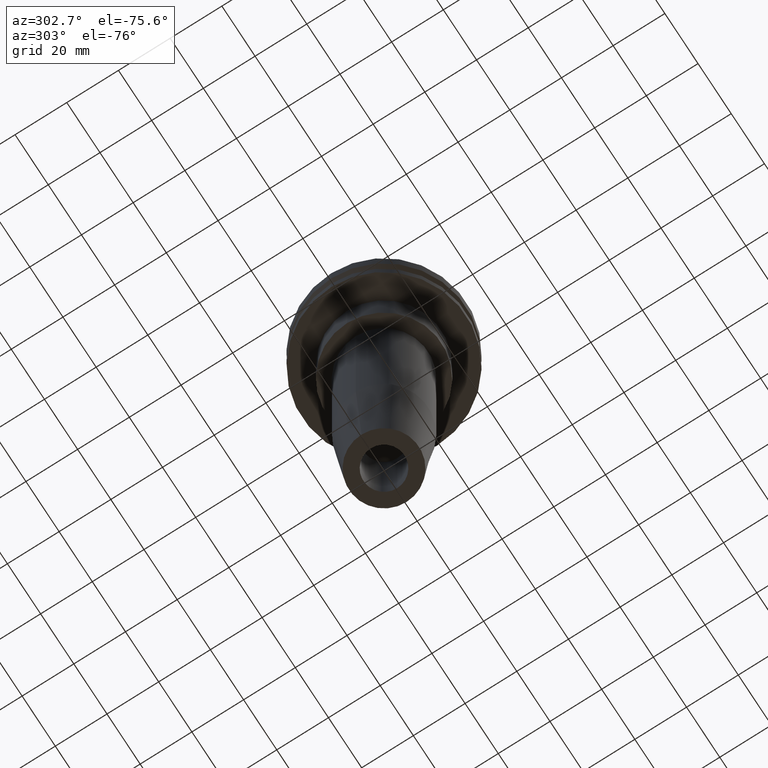
[diagram: clean part render]
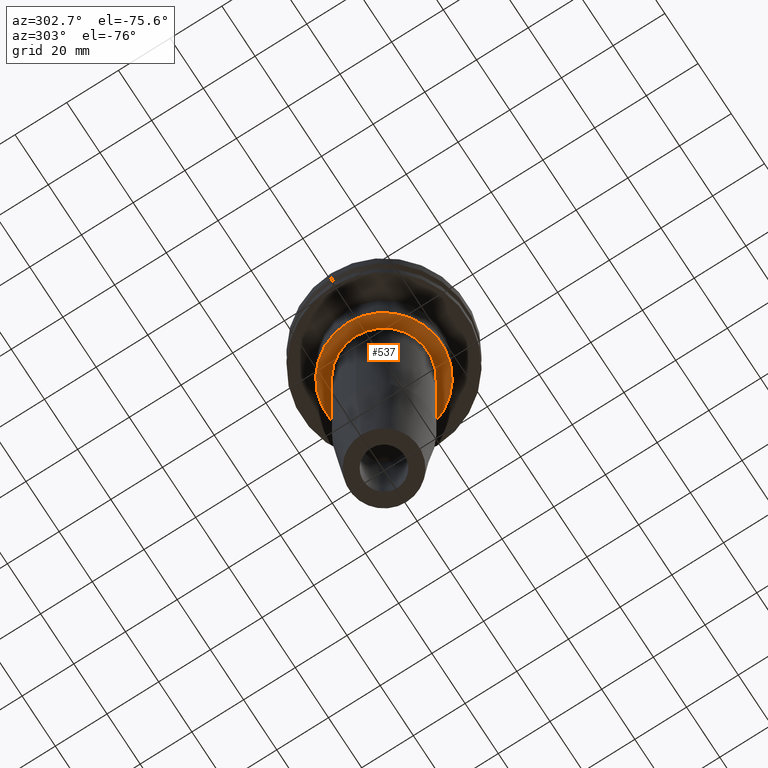
[diagram: same view with one face highlighted and labeled with its STEP entity id]
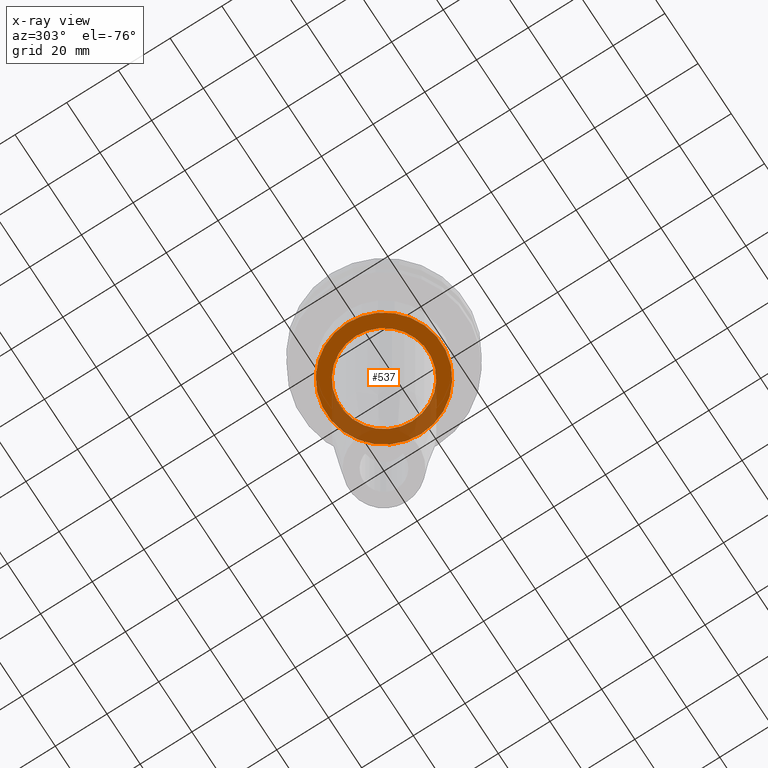
[diagram: x-ray of the same camera — body ghosted, the highlighted face saturated]
A machine part, auxiliary view. The second image highlights one B-rep face of the part: STEP entity #537.
The next image is the same camera in x-ray: the body ghosted, the highlighted face saturated — about 34% of this face is hidden behind the body in this view.
In plain terms, the highlighted planar face has unit normal (0, -0, 1).
Its self-contained STEP definition (entity closure, byte-faithful):
#2 = EDGE_CURVE ( 'NONE', #299, #67, #97, .T. ) ;
#3 = CARTESIAN_POINT ( 'NONE',  ( 17.00000000000000000, 0.000000000000000000, -35.04999999999999716 ) ) ;
#23 = DIRECTION ( 'NONE',  ( 1.000000000000000000, 0.000000000000000000, 0.000000000000000000 ) ) ;
#38 = EDGE_CURVE ( 'NONE', #67, #299, #433, .T. ) ;
#49 = ORIENTED_EDGE ( 'NONE', *, *, #2, .T. ) ;
#67 = VERTEX_POINT ( 'NONE', #402 ) ;
#84 = CARTESIAN_POINT ( 'NONE',  ( -22.22499999999999787, 2.721777511104992454E-15, -35.04999999999999716 ) ) ;
#92 = CARTESIAN_POINT ( 'NONE',  ( 0.000000000000000000, 0.000000000000000000, -35.04999999999999716 ) ) ;
#97 = CIRCLE ( 'NONE', #587, 17.00000000000000000 ) ;
#141 = DIRECTION ( 'NONE',  ( 1.000000000000000000, 0.000000000000000000, 0.000000000000000000 ) ) ;
#151 = CARTESIAN_POINT ( 'NONE',  ( 0.000000000000000000, 22.22499999999999787, -35.04999999999999716 ) ) ;
#204 = EDGE_CURVE ( 'NONE', #775, #626, #613, .T. ) ;
#274 = DIRECTION ( 'NONE',  ( 1.000000000000000000, 0.000000000000000000, 0.000000000000000000 ) ) ;
#288 = DIRECTION ( 'NONE',  ( 1.000000000000000000, 0.000000000000000000, 0.000000000000000000 ) ) ;
#299 = VERTEX_POINT ( 'NONE', #3 ) ;
#319 = AXIS2_PLACEMENT_3D ( 'NONE', #807, #412, #745 ) ;
#340 = DIRECTION ( 'NONE',  ( -0.000000000000000000, -0.000000000000000000, 1.000000000000000000 ) ) ;
#352 = PLANE ( 'NONE',  #763 ) ;
#402 = CARTESIAN_POINT ( 'NONE',  ( -17.00000000000000000, 2.081899558550500280E-15, -35.04999999999999716 ) ) ;
#409 = EDGE_LOOP ( 'NONE', ( #49, #648 ) ) ;
#410 = CARTESIAN_POINT ( 'NONE',  ( 0.000000000000000000, 0.000000000000000000, -35.04999999999999716 ) ) ;
#412 = DIRECTION ( 'NONE',  ( -0.000000000000000000, -0.000000000000000000, 1.000000000000000000 ) ) ;
#416 = DIRECTION ( 'NONE',  ( -0.000000000000000000, -0.000000000000000000, 1.000000000000000000 ) ) ;
#420 = DIRECTION ( 'NONE',  ( 0.000000000000000000, -0.000000000000000000, 1.000000000000000000 ) ) ;
#433 = CIRCLE ( 'NONE', #319, 17.00000000000000000 ) ;
#437 = EDGE_CURVE ( 'NONE', #626, #775, #528, .T. ) ;
#478 = ORIENTED_EDGE ( 'NONE', *, *, #437, .F. ) ;
#490 = AXIS2_PLACEMENT_3D ( 'NONE', #410, #340, #274 ) ;
#492 = FACE_BOUND ( 'NONE', #409, .T. ) ;
#495 = AXIS2_PLACEMENT_3D ( 'NONE', #92, #823, #288 ) ;
#528 = CIRCLE ( 'NONE', #490, 22.22499999999999787 ) ;
#537 = ADVANCED_FACE ( 'NONE', ( #492, #746 ), #352, .F. ) ;
#581 = CARTESIAN_POINT ( 'NONE',  ( 22.22499999999999787, 0.000000000000000000, -35.04999999999999716 ) ) ;
#582 = ORIENTED_EDGE ( 'NONE', *, *, #204, .F. ) ;
#587 = AXIS2_PLACEMENT_3D ( 'NONE', #803, #416, #141 ) ;
#613 = CIRCLE ( 'NONE', #495, 22.22499999999999787 ) ;
#626 = VERTEX_POINT ( 'NONE', #581 ) ;
#648 = ORIENTED_EDGE ( 'NONE', *, *, #38, .T. ) ;
#745 = DIRECTION ( 'NONE',  ( 1.000000000000000000, 0.000000000000000000, 0.000000000000000000 ) ) ;
#746 = FACE_OUTER_BOUND ( 'NONE', #819, .T. ) ;
#763 = AXIS2_PLACEMENT_3D ( 'NONE', #151, #420, #23 ) ;
#775 = VERTEX_POINT ( 'NONE', #84 ) ;
#803 = CARTESIAN_POINT ( 'NONE',  ( 0.000000000000000000, 0.000000000000000000, -35.04999999999999716 ) ) ;
#807 = CARTESIAN_POINT ( 'NONE',  ( 0.000000000000000000, 0.000000000000000000, -35.04999999999999716 ) ) ;
#819 = EDGE_LOOP ( 'NONE', ( #478, #582 ) ) ;
#823 = DIRECTION ( 'NONE',  ( -0.000000000000000000, -0.000000000000000000, 1.000000000000000000 ) ) ;